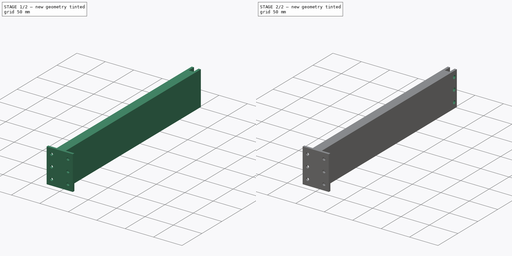
[diagram: build sequence overview — one tinted view per stage of 2, left to right]
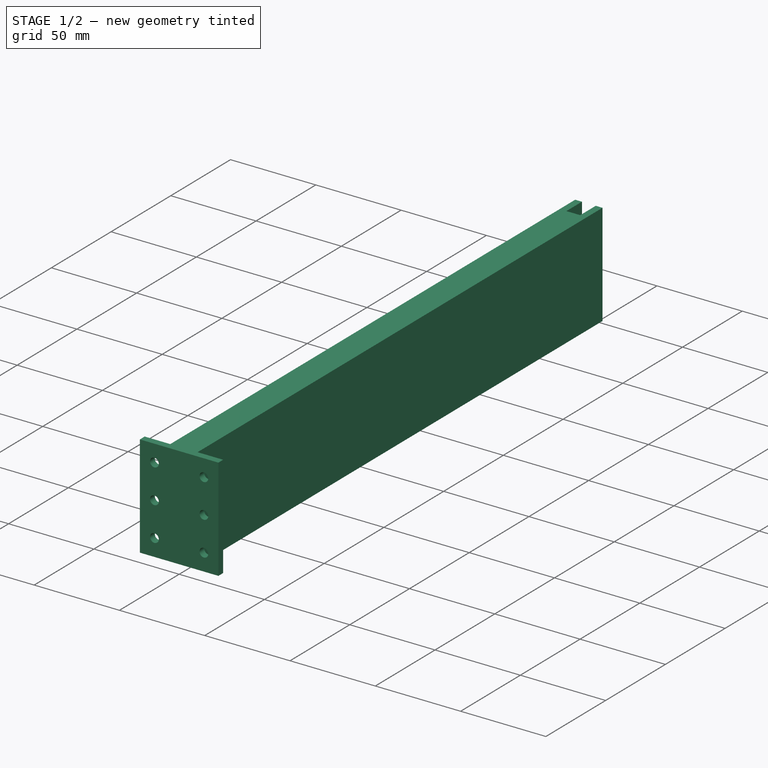
[diagram: stage 1 of 2 — iso view after this stage's code; geometry added in this stage tinted green]
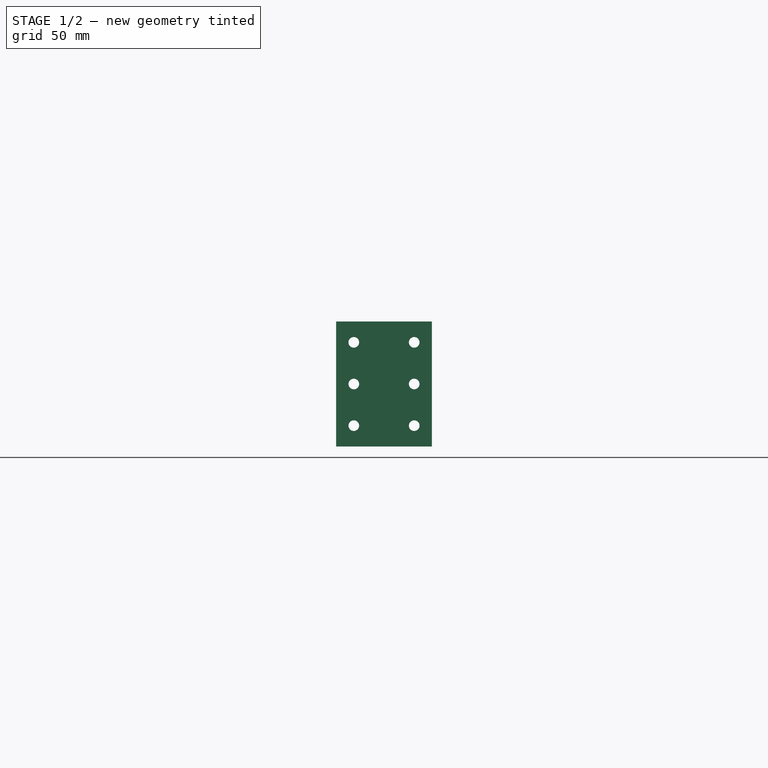
[diagram: stage 1 of 2 — front view after this stage's code; geometry added in this stage tinted green]
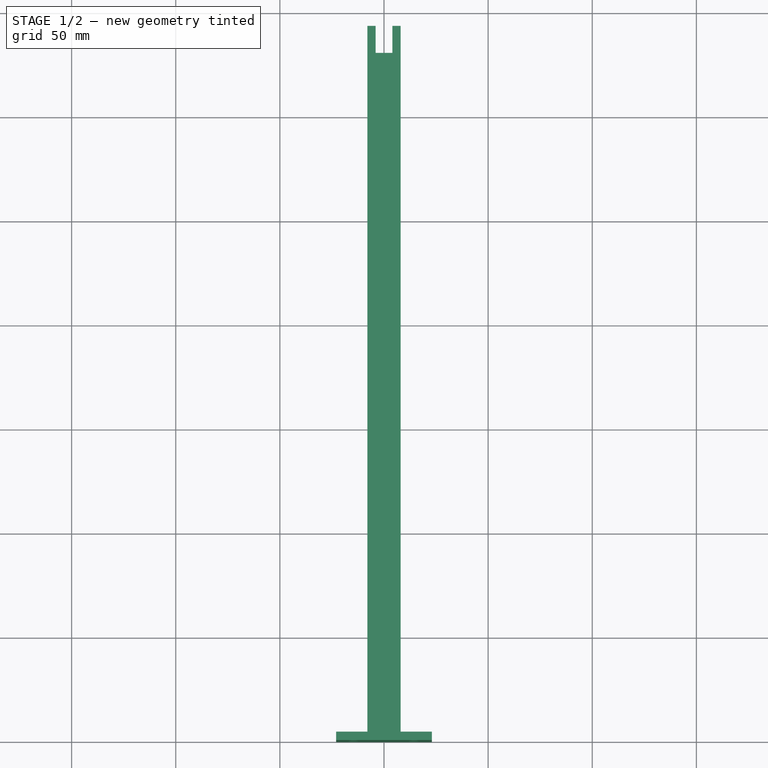
[diagram: stage 1 of 2 — top view after this stage's code; geometry added in this stage tinted green]
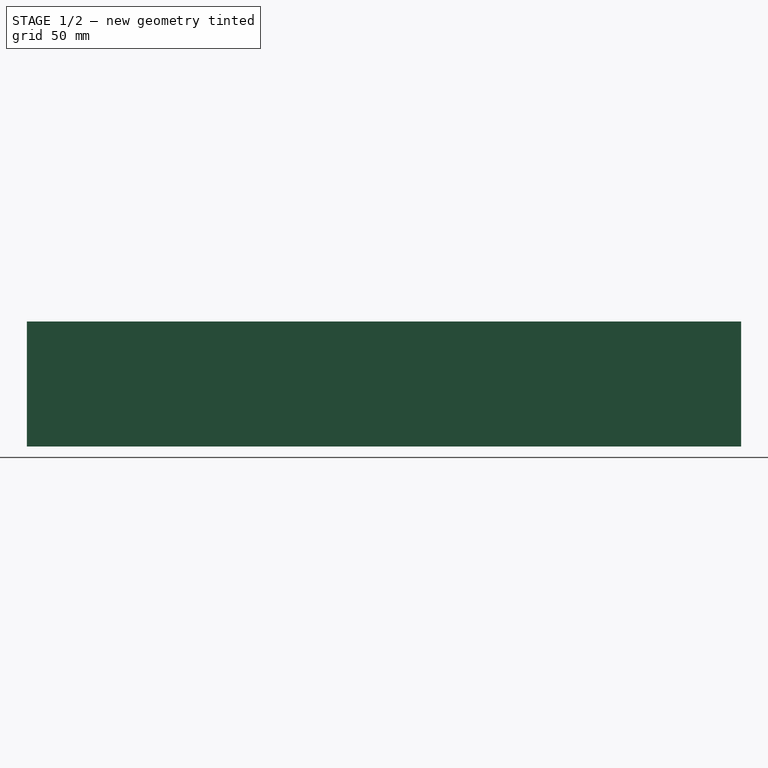
[diagram: stage 1 of 2 — right view after this stage's code; geometry added in this stage tinted green]
FCSTD DOCUMENT  (FreeCAD 0.18R16110 (Git))
Label: armlong_v3
License: All rights reserved
LicenseURL: http://en.wikipedia.org/wiki/All_rights_reserved
objects: Sketcher::SketchObject×3, PartDesign::Pad×2, PartDesign::Hole×1, PartDesign::Body×1
note: 10 computed .brp shape members not serialized (recipe doc carries the construction recipe); baked Part::Feature solids carry a one-line shape summary decoded from their .brp

FEATURE [Sketcher::SketchObject] Sketch
  MapMode = 5
  Support = -> [XY_Plane]
  sketch-geometry (8):
    g0: LineSegment StartX=-8 StartY=0 StartZ=0 EndX=8 EndY=0 EndZ=0
    g1: LineSegment StartX=8 StartY=0 StartZ=0 EndX=8 EndY=343 EndZ=0
    g2: LineSegment StartX=8 StartY=343 StartZ=0 EndX=4.05 EndY=343 EndZ=0
    g3: LineSegment StartX=-4.05 StartY=343 StartZ=0 EndX=-4.05 EndY=330 EndZ=0
    g4: LineSegment StartX=-4.05 StartY=330 StartZ=0 EndX=4.05 EndY=330 EndZ=0
    g5: LineSegment StartX=4.05 StartY=330 StartZ=0 EndX=4.05 EndY=343 EndZ=0
    g6: LineSegment StartX=-4.05 StartY=343 StartZ=0 EndX=-8 EndY=343 EndZ=0
    g7: LineSegment StartX=-8 StartY=343 StartZ=0 EndX=-8 EndY=0 EndZ=0
  constraints (21):
    c: PointOnObject(g0,g-1)
    c: Coincident(g0,g1)
    c: Vertical(g1)
    c: Coincident(g1,g2)
    c: Vertical(g3)
    c: Coincident(g3,g4)
    c: Coincident(g4,g5)
    c: Horizontal(g6)
    c: Coincident(g6,g7)
    c: Coincident(g7,g0)
    c: Symmetric(g0,g0,g-2)
    c: Symmetric(g4,g3,g-2)
    c: Symmetric(g6,g1,g-2)
    c: Distance(g0) = 16
    c: Distance(g4) = 8.1
    c: DistanceY(g7,g7) = 343
    c: DistanceY(g4) = 330
    c: Coincident(g2,g5)
    c: PointOnObject(g6,g3)
    c: Symmetric(g2,g3,g-2)
    c: Horizontal(g2)
FEATURE [PartDesign::Pad] Pad
  Length = 60
  Length2 = 100
  Profile = -> Sketch
  Type = 0
FEATURE [Sketcher::SketchObject] Sketch001
  MapMode = 5
  Placement = pos=(0,0,0) rot=(1,0,0;1.5708rad)
  Support = -> [Pad]
  sketch-geometry (13):
    g0: LineSegment StartX=-23 StartY=0 StartZ=0 EndX=23 EndY=0 EndZ=0
    g1: LineSegment StartX=23 StartY=0 StartZ=0 EndX=23 EndY=60 EndZ=0
    g2: LineSegment StartX=23 StartY=60 StartZ=0 EndX=-23 EndY=60 EndZ=0
    g3: LineSegment StartX=-23 StartY=60 StartZ=0 EndX=-23 EndY=0 EndZ=0
    g4: LineSegment [constr] StartX=-14.5 StartY=10 StartZ=0 EndX=14.5 EndY=10 EndZ=0
    g5: LineSegment [constr] StartX=-14.5 StartY=10 StartZ=0 EndX=-14.5 EndY=50 EndZ=0
    g6: LineSegment [constr] StartX=14.5 StartY=10 StartZ=0 EndX=14.5 EndY=50 EndZ=0
    g7: Circle CenterX=-14.5 CenterY=10 CenterZ=0 NormalX=0 NormalY=0 NormalZ=1 AngleXU=0 Radius=2.55
    g8: Circle CenterX=-14.5 CenterY=50 CenterZ=0 NormalX=0 NormalY=0 NormalZ=1 AngleXU=0 Radius=2.55
    g9: Circle CenterX=-14.5 CenterY=30 CenterZ=0 NormalX=0 NormalY=0 NormalZ=1 AngleXU=0 Radius=2.55
    g10: Circle CenterX=14.5 CenterY=50 CenterZ=0 NormalX=0 NormalY=0 NormalZ=1 AngleXU=0 Radius=2.55
    g11: Circle CenterX=14.5 CenterY=30 CenterZ=0 NormalX=0 NormalY=0 NormalZ=1 AngleXU=0 Radius=2.55
    g12: Circle CenterX=14.5 CenterY=10 CenterZ=0 NormalX=0 NormalY=0 NormalZ=1 AngleXU=0 Radius=2.55
  constraints (34):
    c: Coincident(g0,g1)
    c: Coincident(g1,g2)
    c: Coincident(g2,g3)
    c: Coincident(g3,g0)
    c: Horizontal(g2)
    c: Vertical(g1)
    c: Vertical(g3)
    c: PointOnObject(g0,g-1)
    c: DistanceY(g1,g1) = 60
    c: DistanceX(g0,g0) = 46
    c: Distance(g4) = 29
    c: DistanceY(g4) = 10
    c: Symmetric(g4,g4,g-2)
    c: Coincident(g5,g4)
    c: Vertical(g5)
    c: Coincident(g6,g4)
    c: Vertical(g6)
    c: Equal(g6,g5)
    c: DistanceY(g5) = 50
    c: Coincident(g7,g4)
    c: Coincident(g8,g5)
    c: PointOnObject(g9,g5)
    c: Equal(g8,g9)
    c: Equal(g9,g7)
    c: DistanceY(g9) = 30
    c: Coincident(g10,g6)
    c: PointOnObject(g11,g6)
    c: Coincident(g12,g4)
    c: Equal(g12,g11)
    c: Equal(g11,g10)
    c: Equal(g10,g8)
    c: Radius(g10) = 2.55
    c: DistanceY(g11) = 30
    c: Symmetric(g0,g0,g-2)
FEATURE [PartDesign::Pad] Pad001
  BaseFeature = -> Pad
  Length = 4
  Length2 = 100
  Profile = -> Sketch001
  Reversed = true
  Type = 0
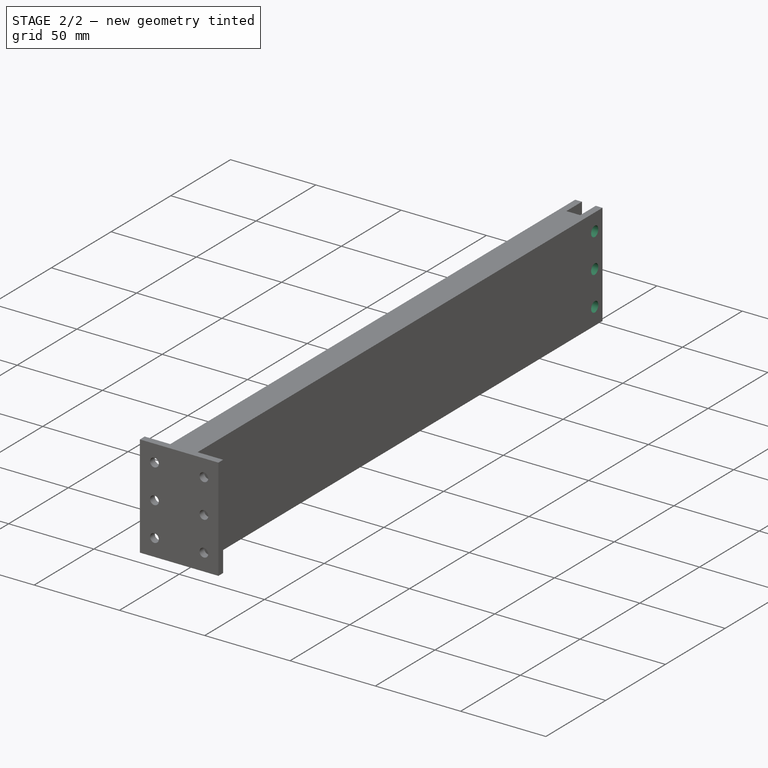
[diagram: stage 2 of 2 — iso view after this stage's code; geometry added in this stage tinted green]
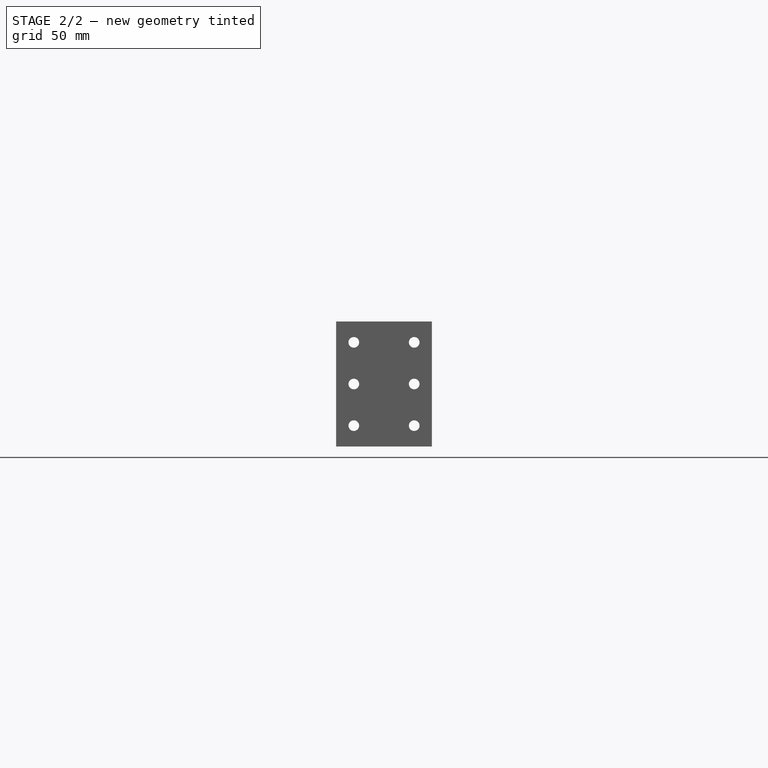
[diagram: stage 2 of 2 — front view after this stage's code; geometry added in this stage tinted green]
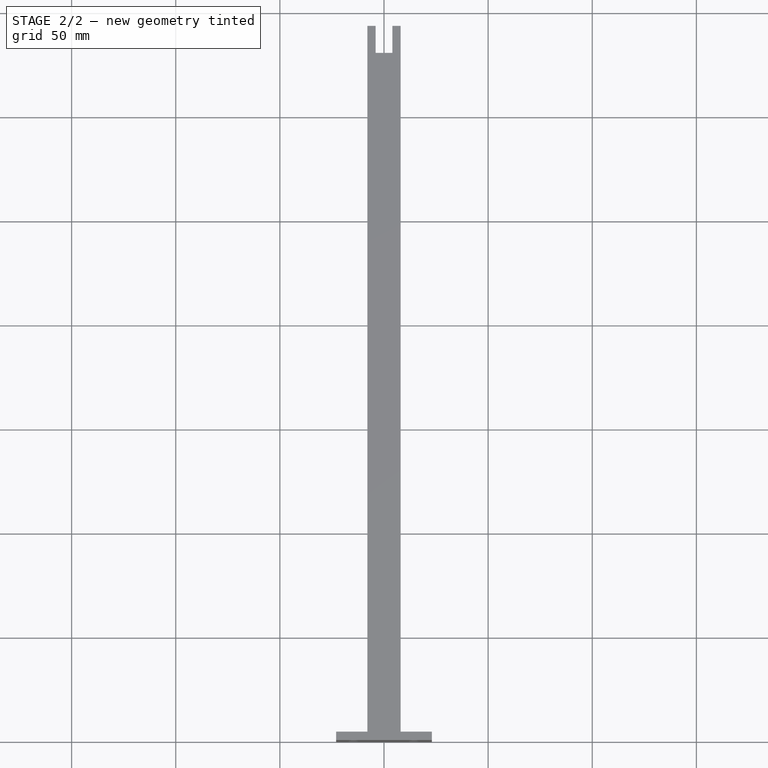
[diagram: stage 2 of 2 — top view after this stage's code; geometry added in this stage tinted green]
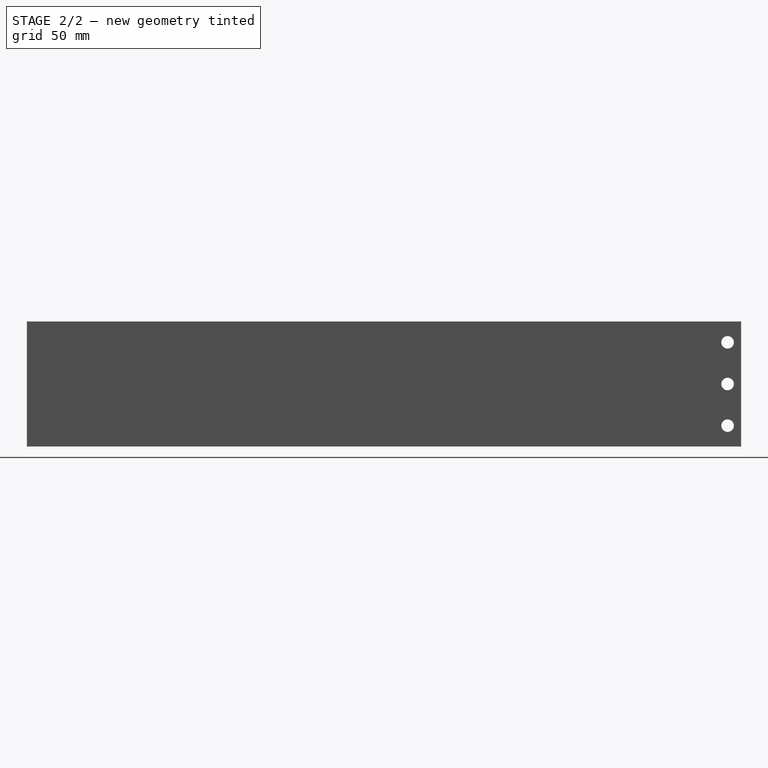
[diagram: stage 2 of 2 — right view after this stage's code; geometry added in this stage tinted green]
FEATURE [Sketcher::SketchObject] Sketch002
  MapMode = 5
  Placement = pos=(-8,0,0) rot=(0.57735,-0.57735,-0.57735;2.0944rad)
  Support = -> [Pad001]
  sketch-geometry (4):
    g0: LineSegment [constr] StartX=-336.5 StartY=50 StartZ=0 EndX=-336.5 EndY=10 EndZ=0
    g1: Circle CenterX=-336.5 CenterY=50 CenterZ=0 NormalX=0 NormalY=0 NormalZ=1 AngleXU=0 Radius=2.55
    g2: Circle CenterX=-336.5 CenterY=10 CenterZ=0 NormalX=0 NormalY=0 NormalZ=1 AngleXU=0 Radius=2.55
    g3: Circle CenterX=-336.5 CenterY=30 CenterZ=0 NormalX=0 NormalY=0 NormalZ=1 AngleXU=0 Radius=2.55
  constraints (11):
    c: Vertical(g0)
    c: DistanceX(g0) = -336.5
    c: DistanceY(g0) = 10
    c: DistanceY(g0) = 50
    c: Coincident(g1,g0)
    c: Coincident(g2,g0)
    c: PointOnObject(g3,g0)
    c: Equal(g1,g3)
    c: Equal(g3,g2)
    c: Radius(g1) = 2.55
    c: DistanceY(g3) = 30
FEATURE [PartDesign::Hole] Hole
  BaseFeature = -> Pad001
  Depth = 25
  DepthType = 1
  Diameter = 6
  DrillPoint = 1
  DrillPointAngle = 118
  HoleCutCountersinkAngle = 90
  HoleCutDepth = 0
  HoleCutDiameter = 0
  HoleCutType = 0
  ModelActualThread = false
  Profile = -> Sketch002
  Tapered = false
  TaperedAngle = 90
  ThreadAngle = 0
  ThreadClass = 0
  ThreadCutOffInner = 0
  ThreadCutOffOuter = 0
  ThreadDirection = 0
  ThreadFit = 0
  ThreadPitch = 0
  ThreadSize = 0
  ThreadType = 0
  Threaded = false
FEATURE [PartDesign::Body] Body
  Group = -> [Sketch,Pad,Sketch001,Pad001,Sketch002,Hole]
  Origin = -> Origin
  Tip = -> Hole
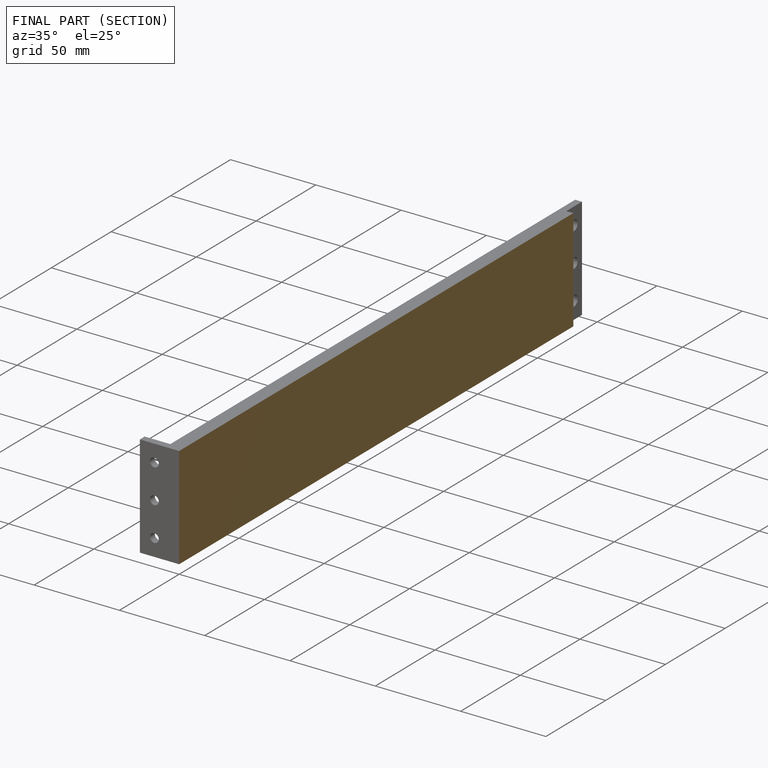
[diagram: finished part — half-section view (interior)]
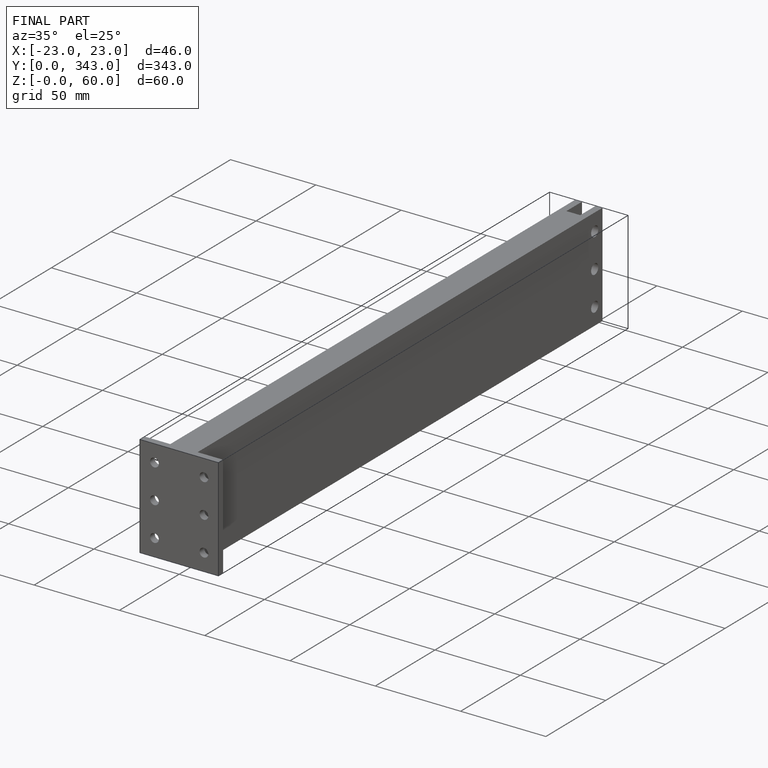
[diagram: finished part — iso view with bounding-box wireframe]
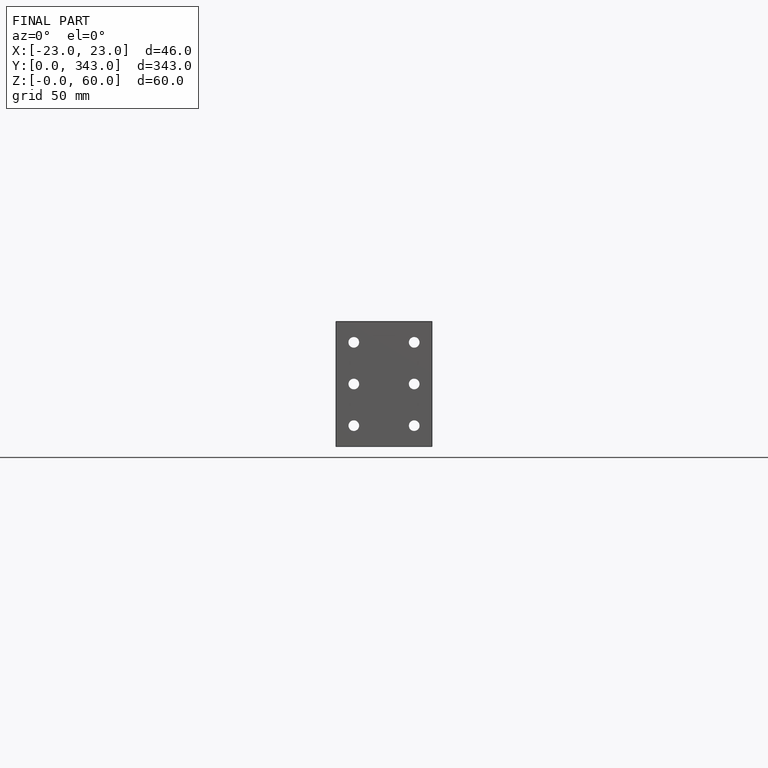
[diagram: finished part — front view with bounding-box wireframe]
